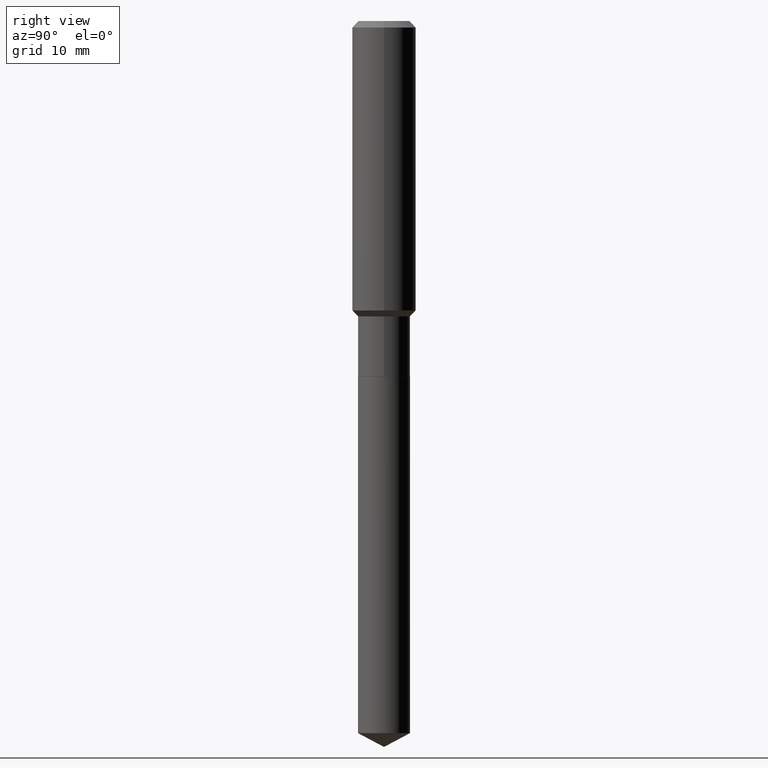
[diagram: clean part render]
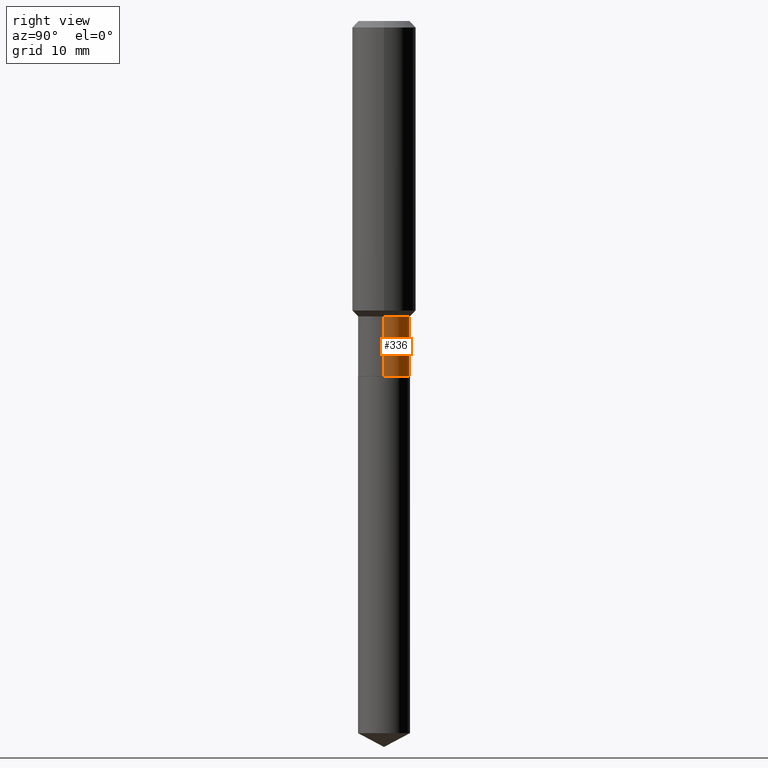
[diagram: same view with one face highlighted and labeled with its STEP entity id]
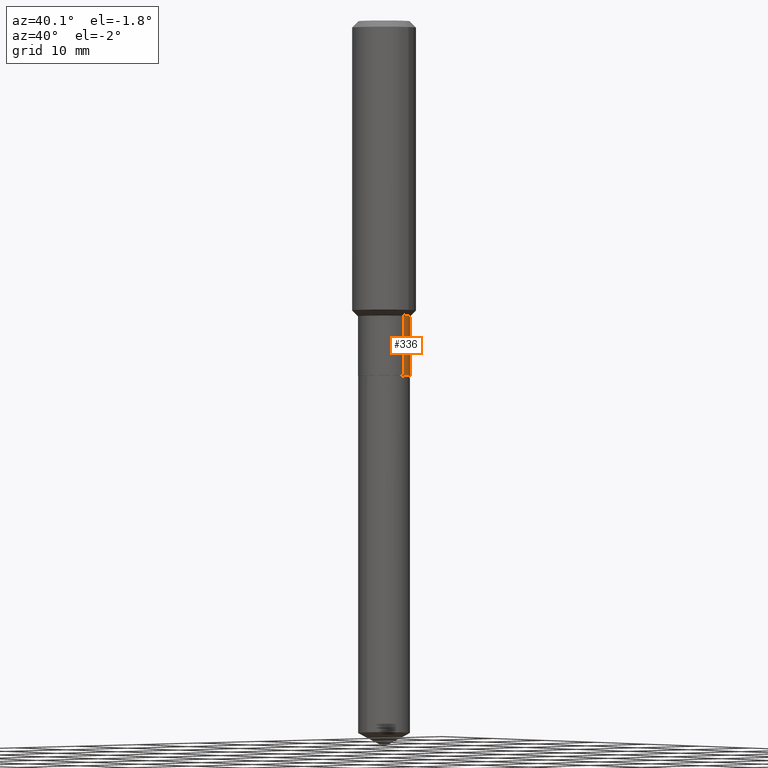
[diagram: same view with one face highlighted and labeled with its STEP entity id]
A machine part, right view. The second image highlights one B-rep face of the part: STEP entity #336.
A second angle (auxiliary view) of the same face is appended — the face is thin or edge-on in the first view.
In plain terms, the highlighted cylindrical surface (edge-blend (fillet) strip) has radius 3.2639 mm, axis along (-0, 0, 1).
Its self-contained STEP definition (entity closure, byte-faithful):
#9 = LINE ( 'NONE', #355, #428 ) ;
#16 = EDGE_LOOP ( 'NONE', ( #128, #63, #18, #295 ) ) ;
#18 = ORIENTED_EDGE ( 'NONE', *, *, #29, .F. ) ;
#29 = EDGE_CURVE ( 'NONE', #144, #289, #180, .T. ) ;
#31 = CARTESIAN_POINT ( 'NONE',  ( 4.285684082839451370E-29, -6.118821046322612189E-15, -1.752499999999999947 ) ) ;
#38 = CARTESIAN_POINT ( 'NONE',  ( -0.1285000000000000309, -4.690605559324578003E-15, -1.752499999999999947 ) ) ;
#63 = ORIENTED_EDGE ( 'NONE', *, *, #425, .T. ) ;
#65 = DIRECTION ( 'NONE',  ( 1.000000000000000000, -6.982962677686270655E-15, 0.000000000000000000 ) ) ;
#66 = DIRECTION ( 'NONE',  ( -2.445468806185136877E-29, 3.491481338843145188E-15, 1.000000000000000000 ) ) ;
#87 = EDGE_CURVE ( 'NONE', #395, #165, #398, .T. ) ;
#93 = CARTESIAN_POINT ( 'NONE',  ( 3.564026238134218164E-29, -5.088484903230000551E-15, -1.457400000000000251 ) ) ;
#98 = DIRECTION ( 'NONE',  ( 1.000000000000000000, -6.982962677686265922E-15, 4.876176775795935232E-29 ) ) ;
#103 = LINE ( 'NONE', #183, #122 ) ;
#122 = VECTOR ( 'NONE', #66, 39.37007874015748143 ) ;
#128 = ORIENTED_EDGE ( 'NONE', *, *, #87, .T. ) ;
#132 = CARTESIAN_POINT ( 'NONE',  ( -0.1284999999999999754, -4.690605559324578003E-15, -1.457400000000000251 ) ) ;
#144 = VERTEX_POINT ( 'NONE', #335 ) ;
#165 = VERTEX_POINT ( 'NONE', #38 ) ;
#166 = FACE_OUTER_BOUND ( 'NONE', #16, .T. ) ;
#180 = CIRCLE ( 'NONE', #379, 0.1284999999999999754 ) ;
#183 = CARTESIAN_POINT ( 'NONE',  ( -0.1285000000000000031, 9.130474154517287609E-16, -6.320831590977552957E-30 ) ) ;
#189 = CARTESIAN_POINT ( 'NONE',  ( 0.000000000000000000, 0.000000000000000000, 0.000000000000000000 ) ) ;
#224 = DIRECTION ( 'NONE',  ( -2.445468806185136597E-29, 3.491481338843145583E-15, 1.000000000000000000 ) ) ;
#244 = DIRECTION ( 'NONE',  ( -2.445468806185136597E-29, 3.491481338843145583E-15, 1.000000000000000000 ) ) ;
#289 = VERTEX_POINT ( 'NONE', #132 ) ;
#295 = ORIENTED_EDGE ( 'NONE', *, *, #315, .F. ) ;
#315 = EDGE_CURVE ( 'NONE', #395, #144, #9, .T. ) ;
#318 = DIRECTION ( 'NONE',  ( -2.445468806185136877E-29, 3.491481338843145188E-15, 1.000000000000000000 ) ) ;
#335 = CARTESIAN_POINT ( 'NONE',  ( 0.1284999999999999754, -5.985795607312685728E-15, -1.457400000000000251 ) ) ;
#336 = ADVANCED_FACE ( 'NONE', ( #166 ), #460, .T. ) ;
#346 = DIRECTION ( 'NONE',  ( 1.000000000000000000, -6.982962677686269077E-15, 0.000000000000000000 ) ) ;
#355 = CARTESIAN_POINT ( 'NONE',  ( 0.1285000000000000031, -8.973107040826851776E-16, 6.265887156897776961E-30 ) ) ;
#360 = AXIS2_PLACEMENT_3D ( 'NONE', #31, #224, #346 ) ;
#379 = AXIS2_PLACEMENT_3D ( 'NONE', #93, #244, #65 ) ;
#395 = VERTEX_POINT ( 'NONE', #413 ) ;
#398 = CIRCLE ( 'NONE', #360, 0.1285000000000000031 ) ;
#402 = DIRECTION ( 'NONE',  ( -2.445468806185136597E-29, 3.491481338843145583E-15, 1.000000000000000000 ) ) ;
#413 = CARTESIAN_POINT ( 'NONE',  ( 0.1285000000000000031, -7.016131750405297366E-15, -1.752499999999999947 ) ) ;
#425 = EDGE_CURVE ( 'NONE', #165, #289, #103, .T. ) ;
#428 = VECTOR ( 'NONE', #318, 39.37007874015748143 ) ;
#460 = CYLINDRICAL_SURFACE ( 'NONE', #482, 0.1285000000000000031 ) ;
#482 = AXIS2_PLACEMENT_3D ( 'NONE', #189, #402, #98 ) ;